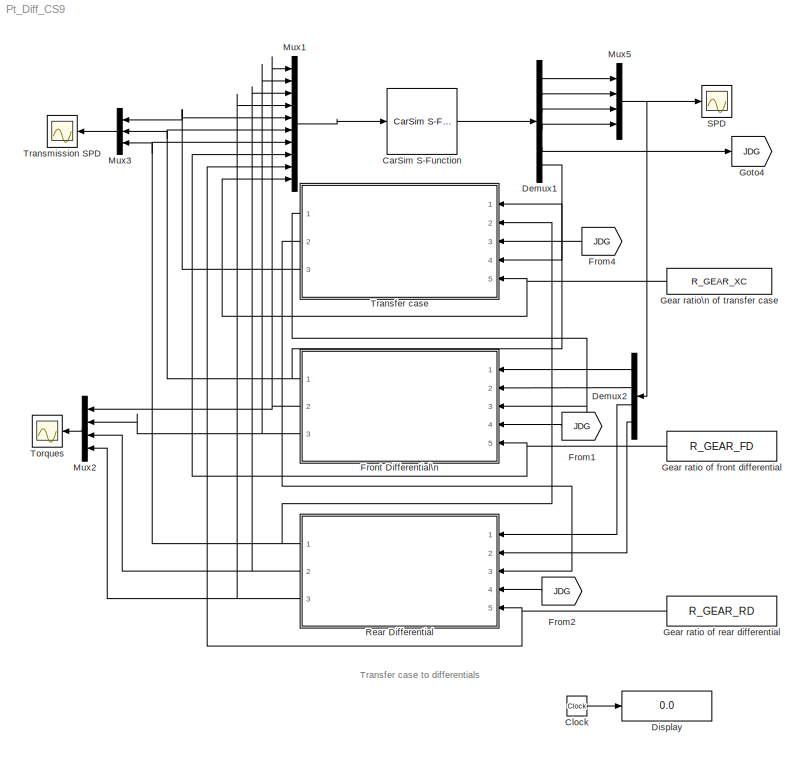
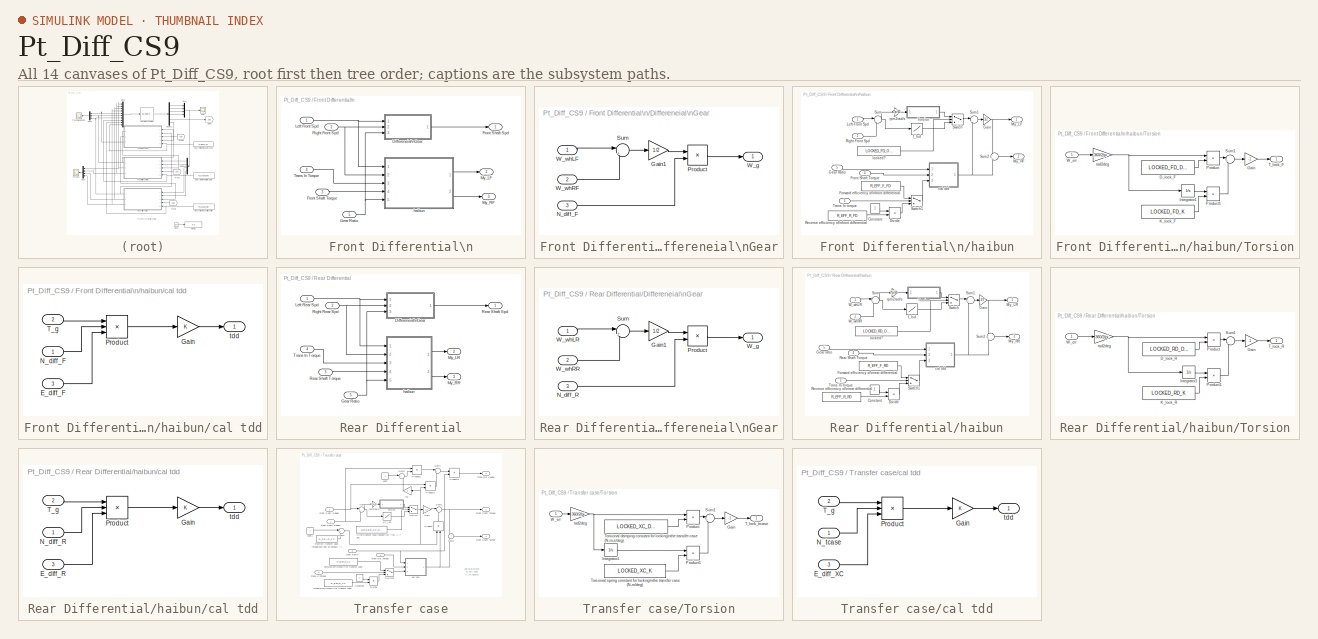
[diagram: thumbnail index - all 14 canvases of the model, root first then tree order]
MODEL Pt_Diff_CS9
KIND model
CONFIG PreLoadFcn = cd Extensions/Simulink/pt_diff	\nRun_ft4wd_eclass	\nlsd_parameta_eclass	\ncd ../../..
BLOCK [Reference] CarSim S-Function  REF=Solver_SF/CarSim S-Function
  Ports = [1, 1]
  Priority = 1
  SID = 1
  SIMFILE = simfile.sim
  SourceBlock = Solver_SF/CarSim S-Function
  SourceType = Vehicle math model library
BLOCK [Clock] Clock
  Decimation = 10
  SID = 2
BLOCK [Demux] Demux1
  Outputs = 6
  Ports = [1, 6]
  SID = 3
BLOCK [Demux] Demux2
  Ports = [1, 4]
  SID = 4
BLOCK [Display] Display
  Decimation = 1
  Lockdown = off
  Ports = [1]
  SID = 5
BLOCK [From] From1
  CloseFcn = tagdialog Close
  GotoTag = JDG
  SID = 6
BLOCK [From] From2
  CloseFcn = tagdialog Close
  GotoTag = JDG
  SID = 7
BLOCK [From] From4
  CloseFcn = tagdialog Close
  GotoTag = JDG
  SID = 8
BLOCK [SubSystem] Front Differential\n
  FunctionWithSeparateData = off
  MaskHideContents = off
  MinAlgLoopOccurrences = off
  Opaque = off
  Ports = [5, 3]
  PropExecContextOutsideSubsystem = off
  RTWSystemCode = Auto
  RequestExecContextInheritance = off
  SID = 9
BLOCK [SubSystem] Front Differential\n/Differeneial\nGear
  FunctionWithSeparateData = off
  MaskHideContents = off
  MinAlgLoopOccurrences = off
  Opaque = off
  Ports = [3, 1]
  PropExecContextOutsideSubsystem = off
  RTWSystemCode = Auto
  RequestExecContextInheritance = off
  SID = 15
BLOCK [Gain] Front Differential\n/Differeneial\nGear/Gain1
  Gain = 1/2
  SID = 19
BLOCK [Inport] Front Differential\n/Differeneial\nGear/N_diff_F
  IconDisplay = Port number
  Port = 3
  SID = 18
BLOCK [Product] Front Differential\n/Differeneial\nGear/Product
  Ports = [2, 1]
  RndMeth = Floor
  SID = 20
BLOCK [Sum] Front Differential\n/Differeneial\nGear/Sum
  IconShape = round
  Inputs = |++
  Ports = [2, 1]
  SID = 21
BLOCK [Outport] Front Differential\n/Differeneial\nGear/W_g
  IconDisplay = Port number
  SID = 22
BLOCK [Inport] Front Differential\n/Differeneial\nGear/W_whLF
  IconDisplay = Port number
  SID = 16
BLOCK [Inport] Front Differential\n/Differeneial\nGear/W_whRF
  IconDisplay = Port number
  Port = 2
  SID = 17
BLOCK [Outport] Front Differential\n/Front Shaft Spd
  IconDisplay = Port number
  SID = 62
BLOCK [Inport] Front Differential\n/Front Shaft Torque
  IconDisplay = Port number
  Port = 3
  SID = 12
BLOCK [Inport] Front Differential\n/Gear Ratio
  IconDisplay = Port number
  Port = 5
  SID = 14
BLOCK [Inport] Front Differential\n/Left Front Spd
  IconDisplay = Port number
  SID = 10
BLOCK [Outport] Front Differential\n/My_LF
  IconDisplay = Port number
  Port = 2
  SID = 63
BLOCK [Outport] Front Differential\n/My_RF
  IconDisplay = Port number
  Port = 3
  SID = 64
BLOCK [Inport] Front Differential\n/Right Front Spd
  IconDisplay = Port number
  Port = 2
  SID = 11
BLOCK [Inport] Front Differential\n/Trans In Torque
  IconDisplay = Port number
  Port = 4
  SID = 13
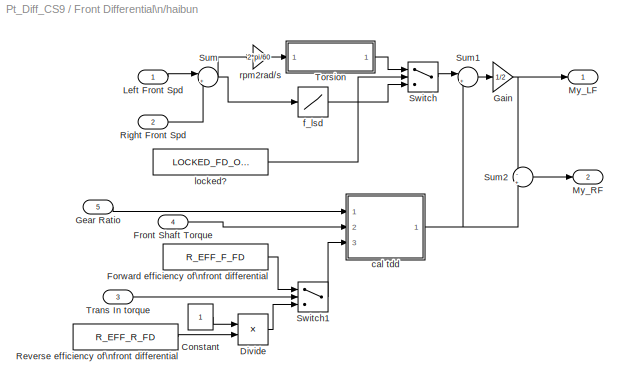
BLOCK [SubSystem] Front Differential\n/haibun
  FunctionWithSeparateData = off
  MaskHideContents = off
  MinAlgLoopOccurrences = off
  Opaque = off
  Ports = [5, 2]
  PropExecContextOutsideSubsystem = off
  RTWSystemCode = Auto
  RequestExecContextInheritance = off
  SID = 23
BLOCK [Constant] Front Differential\n/haibun/Constant
  SID = 29
BLOCK [Product] Front Differential\n/haibun/Divide
  Inputs = */
  Ports = [2, 1]
  RndMeth = Floor
  SID = 30
  SaturateOnIntegerOverflow = off
BLOCK [Constant] Front Differential\n/haibun/Forward efficiency of\nfront differential
  SID = 31
  Value = R_EFF_F_FD
BLOCK [Inport] Front Differential\n/haibun/Front Shaft Torque
  IconDisplay = Port number
  Port = 4
  SID = 27
BLOCK [Gain] Front Differential\n/haibun/Gain
  Gain = 1/2
  SID = 32
BLOCK [Inport] Front Differential\n/haibun/Gear Ratio
  IconDisplay = Port number
  Port = 5
  SID = 28
BLOCK [Inport] Front Differential\n/haibun/Left Front Spd
  IconDisplay = Port number
  SID = 24
BLOCK [Outport] Front Differential\n/haibun/My_LF
  IconDisplay = Port number
  SID = 60
BLOCK [Outport] Front Differential\n/haibun/My_RF
  IconDisplay = Port number
  Port = 2
  SID = 61
BLOCK [Constant] Front Differential\n/haibun/Reverse efficiency of\nfront differential
  SID = 33
  Value = R_EFF_R_FD
BLOCK [Inport] Front Differential\n/haibun/Right Front Spd
  IconDisplay = Port number
  Port = 2
  SID = 25
BLOCK [Sum] Front Differential\n/haibun/Sum
  IconShape = round
  Inputs = |+-
  Ports = [2, 1]
  SID = 34
BLOCK [Sum] Front Differential\n/haibun/Sum1
  IconShape = round
  Inputs = |++
  Ports = [2, 1]
  SID = 35
BLOCK [Sum] Front Differential\n/haibun/Sum2
  IconShape = round
  Inputs = -|+
  Ports = [2, 1]
  SID = 36
BLOCK [Switch] Front Differential\n/haibun/Switch
  SID = 37
  Threshold = 0.5
BLOCK [Switch] Front Differential\n/haibun/Switch1
  SID = 38
BLOCK [SubSystem] Front Differential\n/haibun/Torsion
  FunctionWithSeparateData = off
  MaskHideContents = off
  MinAlgLoopOccurrences = off
  Opaque = off
  Ports = [1, 1]
  PropExecContextOutsideSubsystem = off
  RTWSystemCode = Auto
  RequestExecContextInheritance = off
  SID = 39
BLOCK [Constant] Front Differential\n/haibun/Torsion/D_lock_F
  SID = 41
  Value = LOCKED_FD_DAMP
BLOCK [Gain] Front Differential\n/haibun/Torsion/Gain
  Gain = -1
  SID = 42
BLOCK [Integrator] Front Differential\n/haibun/Torsion/Integrator1
  Ports = [1, 1]
  SID = 43
BLOCK [Constant] Front Differential\n/haibun/Torsion/K_lock_F
  SID = 44
  Value = LOCKED_FD_K
BLOCK [Product] Front Differential\n/haibun/Torsion/Product
  Ports = [2, 1]
  RndMeth = Floor
  SID = 45
BLOCK [Product] Front Differential\n/haibun/Torsion/Product1
  Ports = [2, 1]
  RndMeth = Floor
  SID = 46
BLOCK [Sum] Front Differential\n/haibun/Torsion/Sum1
  IconShape = round
  Inputs = |++
  Ports = [2, 1]
  SID = 47
BLOCK [Outport] Front Differential\n/haibun/Torsion/T_lock_F
  IconDisplay = Port number
  SID = 49
BLOCK [Inport] Front Differential\n/haibun/Torsion/W_err
  IconDisplay = Port number
  SID = 40
BLOCK [Gain] Front Differential\n/haibun/Torsion/rad2deg
  Gain = 360/2/pi
  SID = 48
BLOCK [Inport] Front Differential\n/haibun/Trans In torque
  IconDisplay = Port number
  Port = 3
  SID = 26
BLOCK [SubSystem] Front Differential\n/haibun/cal tdd
  FunctionWithSeparateData = off
  MaskHideContents = off
  MinAlgLoopOccurrences = off
  Opaque = off
  Ports = [3, 1]
  PropExecContextOutsideSubsystem = off
  RTWSystemCode = Auto
  RequestExecContextInheritance = off
  SID = 50
BLOCK [Inport] Front Differential\n/haibun/cal tdd/E_diff_F
  IconDisplay = Port number
  Port = 3
  SID = 53
BLOCK [Gain] Front Differential\n/haibun/cal tdd/Gain
  SID = 54
BLOCK [Inport] Front Differential\n/haibun/cal tdd/N_diff_F
  IconDisplay = Port number
  SID = 51
BLOCK [Product] Front Differential\n/haibun/cal tdd/Product
  Inputs = 3
  Ports = [3, 1]
  RndMeth = Floor
  SID = 55
BLOCK [Inport] Front Differential\n/haibun/cal tdd/T_g
  IconDisplay = Port number
  Port = 2
  SID = 52
BLOCK [Outport] Front Differential\n/haibun/cal tdd/tdd
  IconDisplay = Port number
  SID = 56
BLOCK [Lookup] Front Differential\n/haibun/f_lsd
  InputValues = M_DIFF_FD_TABLE(:,1)
  SID = 57
  Table = M_DIFF_FD_TABLE(:,2)
BLOCK [Constant] Front Differential\n/haibun/locked?
  SID = 58
  Value = LOCKED_FD_OPT
BLOCK [Gain] Front Differential\n/haibun/rpm2rad//s
  Gain = 2*pi/60
  SID = 59
BLOCK [Constant] Gear ratio of front differential
  SID = 66
  Value = R_GEAR_FD
BLOCK [Constant] Gear ratio of rear differential
  SID = 67
  Value = R_GEAR_RD
BLOCK [Constant] Gear ratio\n of transfer case
  SID = 65
  Value = R_GEAR_XC
BLOCK [Goto] Goto4
  GotoTag = JDG
  SID = 68
  TagVisibility = local
BLOCK [Mux] Mux1
  DisplayOption = bar
  Inputs = 10
  Ports = [10, 1]
  SID = 70
BLOCK [Mux] Mux2
  DisplayOption = bar
  Ports = [4, 1]
  SID = 71
BLOCK [Mux] Mux3
  DisplayOption = bar
  Inputs = 3
  Ports = [3, 1]
  SID = 72
BLOCK [Mux] Mux5
  DisplayOption = bar
  Ports = [4, 1]
  SID = 73
BLOCK [SubSystem] Rear Differential
  FunctionWithSeparateData = off
  MaskHideContents = off
  MinAlgLoopOccurrences = off
  Opaque = off
  Ports = [5, 3]
  PropExecContextOutsideSubsystem = off
  RTWSystemCode = Auto
  RequestExecContextInheritance = off
  SID = 74
BLOCK [SubSystem] Rear Differential/Differeneial\nGear
  FunctionWithSeparateData = off
  MaskHideContents = off
  MinAlgLoopOccurrences = off
  Opaque = off
  Ports = [3, 1]
  PropExecContextOutsideSubsystem = off
  RTWSystemCode = Auto
  RequestExecContextInheritance = off
  SID = 80
BLOCK [Gain] Rear Differential/Differeneial\nGear/Gain1
  Gain = 1/2
  SID = 84
BLOCK [Inport] Rear Differential/Differeneial\nGear/N_diff_R
  IconDisplay = Port number
  Port = 3
  SID = 83
BLOCK [Product] Rear Differential/Differeneial\nGear/Product
  Ports = [2, 1]
  RndMeth = Floor
  SID = 85
BLOCK [Sum] Rear Differential/Differeneial\nGear/Sum
  IconShape = round
  Inputs = |++
  Ports = [2, 1]
  SID = 86
BLOCK [Outport] Rear Differential/Differeneial\nGear/W_g
  IconDisplay = Port number
  SID = 87
BLOCK [Inport] Rear Differential/Differeneial\nGear/W_whLR
  IconDisplay = Port number
  SID = 81
BLOCK [Inport] Rear Differential/Differeneial\nGear/W_whRR
  IconDisplay = Port number
  Port = 2
  SID = 82
BLOCK [Inport] Rear Differential/Gear Ratio
  IconDisplay = Port number
  Port = 5
  SID = 79
BLOCK [Inport] Rear Differential/Left Rear Spd
  IconDisplay = Port number
  SID = 75
BLOCK [Outport] Rear Differential/My_LR
  IconDisplay = Port number
  Port = 2
  SID = 128
BLOCK [Outport] Rear Differential/My_RR
  IconDisplay = Port number
  Port = 3
  SID = 129
BLOCK [Outport] Rear Differential/Rear Shaft Spd
  IconDisplay = Port number
  SID = 127
BLOCK [Inport] Rear Differential/Rear Shaft Torque
  IconDisplay = Port number
  Port = 3
  SID = 77
BLOCK [Inport] Rear Differential/Right Rear Spd
  IconDisplay = Port number
  Port = 2
  SID = 76
BLOCK [Inport] Rear Differential/Trans In Torque
  IconDisplay = Port number
  Port = 4
  SID = 78
BLOCK [SubSystem] Rear Differential/haibun
  FunctionWithSeparateData = off
  MaskHideContents = off
  MinAlgLoopOccurrences = off
  Opaque = off
  Ports = [5, 2]
  PropExecContextOutsideSubsystem = off
  RTWSystemCode = Auto
  RequestExecContextInheritance = off
  SID = 88
BLOCK [Constant] Rear Differential/haibun/Constant
  SID = 94
BLOCK [Product] Rear Differential/haibun/Divide
  Inputs = */
  Ports = [2, 1]
  RndMeth = Floor
  SID = 95
  SaturateOnIntegerOverflow = off
BLOCK [Constant] Rear Differential/haibun/Forward efficiency of\nrear differential
  SID = 96
  Value = R_EFF_F_RD
BLOCK [Gain] Rear Differential/haibun/Gain
  Gain = 1/2
  SID = 97
BLOCK [Inport] Rear Differential/haibun/Gear ratio
  IconDisplay = Port number
  Port = 5
  SID = 93
BLOCK [Outport] Rear Differential/haibun/My_LR
  IconDisplay = Port number
  SID = 125
BLOCK [Outport] Rear Differential/haibun/My_RR
  IconDisplay = Port number
  Port = 2
  SID = 126
BLOCK [Inport] Rear Differential/haibun/Rear Shaft Torque
  IconDisplay = Port number
  Port = 4
  SID = 92
BLOCK [Constant] Rear Differential/haibun/Reverse efficiency of\nrear differential
  SID = 98
  Value = R_EFF_R_RD
BLOCK [Sum] Rear Differential/haibun/Sum
  IconShape = round
  Inputs = |+-
  Ports = [2, 1]
  SID = 99
BLOCK [Sum] Rear Differential/haibun/Sum1
  IconShape = round
  Inputs = |++
  Ports = [2, 1]
  SID = 100
BLOCK [Sum] Rear Differential/haibun/Sum2
  IconShape = round
  Inputs = -|+
  Ports = [2, 1]
  SID = 101
BLOCK [Switch] Rear Differential/haibun/Switch
  SID = 102
  Threshold = 0.5
BLOCK [Switch] Rear Differential/haibun/Switch1
  SID = 103
BLOCK [SubSystem] Rear Differential/haibun/Torsion
  FunctionWithSeparateData = off
  MaskHideContents = off
  MinAlgLoopOccurrences = off
  Opaque = off
  Ports = [1, 1]
  PropExecContextOutsideSubsystem = off
  RTWSystemCode = Auto
  RequestExecContextInheritance = off
  SID = 104
BLOCK [Constant] Rear Differential/haibun/Torsion/D_lock_R
  SID = 106
  Value = LOCKED_RD_DAMP
BLOCK [Gain] Rear Differential/haibun/Torsion/Gain
  Gain = -1
  SID = 107
BLOCK [Integrator] Rear Differential/haibun/Torsion/Integrator1
  Ports = [1, 1]
  SID = 108
BLOCK [Constant] Rear Differential/haibun/Torsion/K_lock_R
  SID = 109
  Value = LOCKED_RD_K
BLOCK [Product] Rear Differential/haibun/Torsion/Product
  Ports = [2, 1]
  RndMeth = Floor
  SID = 110
BLOCK [Product] Rear Differential/haibun/Torsion/Product1
  Ports = [2, 1]
  RndMeth = Floor
  SID = 111
BLOCK [Sum] Rear Differential/haibun/Torsion/Sum1
  IconShape = round
  Inputs = |++
  Ports = [2, 1]
  SID = 112
BLOCK [Outport] Rear Differential/haibun/Torsion/T_lock_R
  IconDisplay = Port number
  SID = 114
BLOCK [Inport] Rear Differential/haibun/Torsion/W_err
  IconDisplay = Port number
  SID = 105
BLOCK [Gain] Rear Differential/haibun/Torsion/rad2deg
  Gain = 360/2/pi
  SID = 113
BLOCK [Inport] Rear Differential/haibun/Trans In torque
  IconDisplay = Port number
  Port = 3
  SID = 91
BLOCK [Inport] Rear Differential/haibun/W_whLR
  IconDisplay = Port number
  SID = 89
BLOCK [Inport] Rear Differential/haibun/W_whRR
  IconDisplay = Port number
  Port = 2
  SID = 90
BLOCK [SubSystem] Rear Differential/haibun/cal tdd
  FunctionWithSeparateData = off
  MaskHideContents = off
  MinAlgLoopOccurrences = off
  Opaque = off
  Ports = [3, 1]
  PropExecContextOutsideSubsystem = off
  RTWSystemCode = Auto
  RequestExecContextInheritance = off
  SID = 115
BLOCK [Inport] Rear Differential/haibun/cal tdd/E_diff_R
  IconDisplay = Port number
  Port = 3
  SID = 118
BLOCK [Gain] Rear Differential/haibun/cal tdd/Gain
  SID = 119
BLOCK [Inport] Rear Differential/haibun/cal tdd/N_diff_R
  IconDisplay = Port number
  SID = 116
BLOCK [Product] Rear Differential/haibun/cal tdd/Product
  Inputs = 3
  Ports = [3, 1]
  RndMeth = Floor
  SID = 120
BLOCK [Inport] Rear Differential/haibun/cal tdd/T_g
  IconDisplay = Port number
  Port = 2
  SID = 117
BLOCK [Outport] Rear Differential/haibun/cal tdd/tdd
  IconDisplay = Port number
  SID = 121
BLOCK [Lookup] Rear Differential/haibun/f_lsd
  InputValues = M_DIFF_RD_TABLE(:,1)
  SID = 122
  Table = M_DIFF_RD_TABLE(:,2)
BLOCK [Constant] Rear Differential/haibun/locked?
  SID = 123
  Value = LOCKED_RD_OPT
BLOCK [Gain] Rear Differential/haibun/rpm2rad//s
  Gain = 2*pi/60
  SID = 124
BLOCK [Scope] SPD
  DataFormat = StructureWithTime
  Floating = off
  LimitDataPoints = off
  NumInputPorts = 1
  Ports = [1]
  SID = 130
  YMax = 1340.24
  YMin = -68.0473
BLOCK [Scope] Torques
  DataFormat = StructureWithTime
  Floating = off
  LimitDataPoints = off
  NumInputPorts = 1
  Ports = [1]
  SID = 131
  YMax = 1750
  YMin = 0
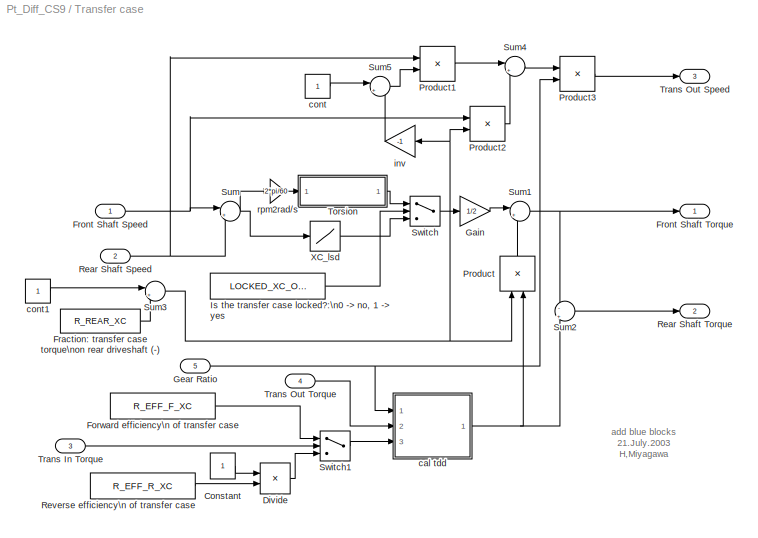
BLOCK [SubSystem] Transfer case
  FunctionWithSeparateData = off
  MaskHideContents = off
  MinAlgLoopOccurrences = off
  Opaque = off
  Ports = [5, 3]
  PropExecContextOutsideSubsystem = off
  RTWSystemCode = Auto
  RequestExecContextInheritance = off
  SID = 132
BLOCK [Constant] Transfer case/Constant
  SID = 138
BLOCK [Product] Transfer case/Divide
  Inputs = */
  Ports = [2, 1]
  RndMeth = Floor
  SID = 139
  SaturateOnIntegerOverflow = off
BLOCK [Constant] Transfer case/Forward efficiency\n of  transfer case
  SID = 140
  Value = R_EFF_F_XC
BLOCK [Constant] Transfer case/Fraction: transfer case torque\non rear driveshaft (-)
  SID = 141
  Value = R_REAR_XC
BLOCK [Inport] Transfer case/Front Shaft Speed
  IconDisplay = Port number
  SID = 133
BLOCK [Outport] Transfer case/Front Shaft Torque
  IconDisplay = Port number
  SID = 180
BLOCK [Gain] Transfer case/Gain
  Gain = 1/2
  SID = 142
BLOCK [Inport] Transfer case/Gear Ratio
  IconDisplay = Port number
  Port = 5
  SID = 137
BLOCK [Constant] Transfer case/Is the transfer case locked?:\n0 -> no, 1 -> yes
  SID = 143
  Value = LOCKED_XC_OPT
BLOCK [Product] Transfer case/Product
  Ports = [2, 1]
  RndMeth = Floor
  SID = 144
BLOCK [Product] Transfer case/Product1
  Ports = [2, 1]
  RndMeth = Floor
  SID = 145
BLOCK [Product] Transfer case/Product2
  Ports = [2, 1]
  RndMeth = Floor
  SID = 146
BLOCK [Product] Transfer case/Product3
  Ports = [2, 1]
  RndMeth = Floor
  SID = 147
BLOCK [Inport] Transfer case/Rear Shaft Speed
  IconDisplay = Port number
  Port = 2
  SID = 134
BLOCK [Outport] Transfer case/Rear Shaft Torque
  IconDisplay = Port number
  Port = 2
  SID = 181
BLOCK [Constant] Transfer case/Reverse efficiency\n of transfer case
  SID = 148
  Value = R_EFF_R_XC
BLOCK [Sum] Transfer case/Sum
  IconShape = round
  Inputs = |+-
  Ports = [2, 1]
  SID = 149
BLOCK [Sum] Transfer case/Sum1
  IconShape = round
  Inputs = |++
  Ports = [2, 1]
  SID = 150
BLOCK [Sum] Transfer case/Sum2
  IconShape = round
  Inputs = -|+
  Ports = [2, 1]
  SID = 151
BLOCK [Sum] Transfer case/Sum3
  IconShape = round
  Inputs = |+-
  Ports = [2, 1]
  SID = 152
BLOCK [Sum] Transfer case/Sum4
  IconShape = round
  Inputs = |++
  Ports = [2, 1]
  SID = 153
BLOCK [Sum] Transfer case/Sum5
  IconShape = round
  Inputs = |++
  Ports = [2, 1]
  SID = 154
BLOCK [Switch] Transfer case/Switch
  SID = 155
  Threshold = 0.5
BLOCK [Switch] Transfer case/Switch1
  SID = 156
BLOCK [SubSystem] Transfer case/Torsion
  FunctionWithSeparateData = off
  MaskHideContents = off
  MinAlgLoopOccurrences = off
  Opaque = off
  Ports = [1, 1]
  PropExecContextOutsideSubsystem = off
  RTWSystemCode = Auto
  RequestExecContextInheritance = off
  SID = 157
BLOCK [Gain] Transfer case/Torsion/Gain
  Gain = -1
  SID = 159
BLOCK [Integrator] Transfer case/Torsion/Integrator1
  Ports = [1, 1]
  SID = 160
BLOCK [Product] Transfer case/Torsion/Product
  Ports = [2, 1]
  RndMeth = Floor
  SID = 161
BLOCK [Product] Transfer case/Torsion/Product1
  Ports = [2, 1]
  RndMeth = Floor
  SID = 162
BLOCK [Sum] Transfer case/Torsion/Sum1
  IconShape = round
  Inputs = |++
  Ports = [2, 1]
  SID = 163
BLOCK [Outport] Transfer case/Torsion/T_lock_trcase
  IconDisplay = Port number
  SID = 167
BLOCK [Constant] Transfer case/Torsion/Torsional damping constant for locking\nthe transfer case (N-m-s//deg)
  SID = 164
  Value = LOCKED_XC_DAMP
BLOCK [Constant] Transfer case/Torsion/Torsional spring constant for locking\nthe transfer case (N-m//deg)
  SID = 165
  Value = LOCKED_XC_K
BLOCK [Inport] Transfer case/Torsion/W_err
  IconDisplay = Port number
  SID = 158
BLOCK [Gain] Transfer case/Torsion/rad2deg
  Gain = 360/2/pi
  SID = 166
BLOCK [Inport] Transfer case/Trans In Torque
  IconDisplay = Port number
  Port = 3
  SID = 135
BLOCK [Outport] Transfer case/Trans Out Speed
  IconDisplay = Port number
  Port = 3
  SID = 182
BLOCK [Inport] Transfer case/Trans Out Torque
  IconDisplay = Port number
  Port = 4
  SID = 136
BLOCK [Lookup] Transfer case/XC_lsd
  InputValues = M_DIFF_XC_TABLE(:,1)
  SID = 168
  Table = M_DIFF_XC_TABLE(:,2)
BLOCK [SubSystem] Transfer case/cal tdd
  FunctionWithSeparateData = off
  MaskHideContents = off
  MinAlgLoopOccurrences = off
  Opaque = off
  Ports = [3, 1]
  PropExecContextOutsideSubsystem = off
  RTWSystemCode = Auto
  RequestExecContextInheritance = off
  SID = 169
BLOCK [Inport] Transfer case/cal tdd/E_diff_XC
  IconDisplay = Port number
  Port = 3
  SID = 172
BLOCK [Gain] Transfer case/cal tdd/Gain
  SID = 173
BLOCK [Inport] Transfer case/cal tdd/N_tcase
  IconDisplay = Port number
  SID = 170
BLOCK [Product] Transfer case/cal tdd/Product
  Inputs = 3
  Ports = [3, 1]
  RndMeth = Floor
  SID = 174
BLOCK [Inport] Transfer case/cal tdd/T_g
  IconDisplay = Port number
  Port = 2
  SID = 171
BLOCK [Outport] Transfer case/cal tdd/tdd
  IconDisplay = Port number
  SID = 175
BLOCK [Constant] Transfer case/cont
  SID = 176
BLOCK [Constant] Transfer case/cont1
  SID = 177
BLOCK [Gain] Transfer case/inv
  Gain = -1
  SID = 178
BLOCK [Gain] Transfer case/rpm2rad//s
  Gain = 2*pi/60
  SID = 179
BLOCK [Scope] Transmission SPD
  DataFormat = StructureWithTime
  Floating = off
  LimitDataPoints = off
  NumInputPorts = 1
  Ports = [1]
  SID = 183
  SaveName = ScopeData1
  YMax = 3683.73
  YMin = -111.446
ANNOTATION (root): Transfer case to differentials
ANNOTATION Transfer case: add blue blocks\n21.July.2003\nH,Miyagawa
LINE CarSim S-Function:1 -> Demux1:1
LINE Clock:1 -> Display:1
LINE Demux1:1 -> Mux5:1
LINE Demux1:2 -> Mux5:2
LINE Demux1:3 -> Mux5:3
LINE Demux1:4 -> Mux5:4
LINE Demux1:5 -> Goto4:1
LINE Demux1:6 -> Transfer case:4
LINE Demux2:1 -> Front Differential\n:1
LINE Demux2:2 -> Front Differential\n:2
LINE Demux2:3 -> Rear Differential:1
LINE Demux2:4 -> Rear Differential:2
LINE From1:1 -> Front Differential\n:4
LINE From2:1 -> Rear Differential:4
LINE From4:1 -> Transfer case:3
LINE Front Differential\n/Differeneial\nGear/Gain1:1 -> Front Differential\n/Differeneial\nGear/Product:1
LINE Front Differential\n/Differeneial\nGear/N_diff_F:1 -> Front Differential\n/Differeneial\nGear/Product:2
LINE Front Differential\n/Differeneial\nGear/Product:1 -> Front Differential\n/Differeneial\nGear/W_g:1
LINE Front Differential\n/Differeneial\nGear/Sum:1 -> Front Differential\n/Differeneial\nGear/Gain1:1
LINE Front Differential\n/Differeneial\nGear/W_whLF:1 -> Front Differential\n/Differeneial\nGear/Sum:1
LINE Front Differential\n/Differeneial\nGear/W_whRF:1 -> Front Differential\n/Differeneial\nGear/Sum:2
LINE Front Differential\n/Differeneial\nGear:1 -> Front Differential\n/Front Shaft Spd:1
LINE Front Differential\n/Front Shaft Torque:1 -> Front Differential\n/haibun:4
NET Front Differential\n/Gear Ratio:1 -> Front Differential\n/Differeneial\nGear:3, Front Differential\n/haibun:5
NET Front Differential\n/Left Front Spd:1 -> Front Differential\n/Differeneial\nGear:1, Front Differential\n/haibun:1
NET Front Differential\n/Right Front Spd:1 -> Front Differential\n/Differeneial\nGear:2, Front Differential\n/haibun:2
LINE Front Differential\n/Trans In Torque:1 -> Front Differential\n/haibun:3
LINE Front Differential\n/haibun/Constant:1 -> Front Differential\n/haibun/Divide:1
LINE Front Differential\n/haibun/Divide:1 -> Front Differential\n/haibun/Switch1:3
LINE Front Differential\n/haibun/Forward efficiency of\nfront differential:1 -> Front Differential\n/haibun/Switch1:1
LINE Front Differential\n/haibun/Front Shaft Torque:1 -> Front Differential\n/haibun/cal tdd:2
NET Front Differential\n/haibun/Gain:1 -> Front Differential\n/haibun/My_LF:1, Front Differential\n/haibun/Sum2:1
LINE Front Differential\n/haibun/Gear Ratio:1 -> Front Differential\n/haibun/cal tdd:1
LINE Front Differential\n/haibun/Left Front Spd:1 -> Front Differential\n/haibun/Sum:1
LINE Front Differential\n/haibun/Reverse efficiency of\nfront differential:1 -> Front Differential\n/haibun/Divide:2
LINE Front Differential\n/haibun/Right Front Spd:1 -> Front Differential\n/haibun/Sum:2
LINE Front Differential\n/haibun/Sum1:1 -> Front Differential\n/haibun/Gain:1
LINE Front Differential\n/haibun/Sum2:1 -> Front Differential\n/haibun/My_RF:1
NET Front Differential\n/haibun/Sum:1 -> Front Differential\n/haibun/f_lsd:1, Front Differential\n/haibun/rpm2rad//s:1
LINE Front Differential\n/haibun/Switch1:1 -> Front Differential\n/haibun/cal tdd:3
LINE Front Differential\n/haibun/Switch:1 -> Front Differential\n/haibun/Sum1:1
LINE Front Differential\n/haibun/Torsion/D_lock_F:1 -> Front Differential\n/haibun/Torsion/Product:2
LINE Front Differential\n/haibun/Torsion/Gain:1 -> Front Differential\n/haibun/Torsion/T_lock_F:1
LINE Front Differential\n/haibun/Torsion/Integrator1:1 -> Front Differential\n/haibun/Torsion/Product1:1
LINE Front Differential\n/haibun/Torsion/K_lock_F:1 -> Front Differential\n/haibun/Torsion/Product1:2
LINE Front Differential\n/haibun/Torsion/Product1:1 -> Front Differential\n/haibun/Torsion/Sum1:2
LINE Front Differential\n/haibun/Torsion/Product:1 -> Front Differential\n/haibun/Torsion/Sum1:1
LINE Front Differential\n/haibun/Torsion/Sum1:1 -> Front Differential\n/haibun/Torsion/Gain:1
LINE Front Differential\n/haibun/Torsion/W_err:1 -> Front Differential\n/haibun/Torsion/rad2deg:1
NET Front Differential\n/haibun/Torsion/rad2deg:1 -> Front Differential\n/haibun/Torsion/Integrator1:1, Front Differential\n/haibun/Torsion/Product:1
LINE Front Differential\n/haibun/Torsion:1 -> Front Differential\n/haibun/Switch:1
LINE Front Differential\n/haibun/Trans In torque:1 -> Front Differential\n/haibun/Switch1:2
LINE Front Differential\n/haibun/cal tdd/E_diff_F:1 -> Front Differential\n/haibun/cal tdd/Product:3
LINE Front Differential\n/haibun/cal tdd/Gain:1 -> Front Differential\n/haibun/cal tdd/tdd:1
LINE Front Differential\n/haibun/cal tdd/N_diff_F:1 -> Front Differential\n/haibun/cal tdd/Product:2
LINE Front Differential\n/haibun/cal tdd/Product:1 -> Front Differential\n/haibun/cal tdd/Gain:1
LINE Front Differential\n/haibun/cal tdd/T_g:1 -> Front Differential\n/haibun/cal tdd/Product:1
NET Front Differential\n/haibun/cal tdd:1 -> Front Differential\n/haibun/Sum1:2, Front Differential\n/haibun/Sum2:2
LINE Front Differential\n/haibun/f_lsd:1 -> Front Differential\n/haibun/Switch:3
LINE Front Differential\n/haibun/locked?:1 -> Front Differential\n/haibun/Switch:2
LINE Front Differential\n/haibun/rpm2rad//s:1 -> Front Differential\n/haibun/Torsion:1
LINE Front Differential\n/haibun:1 -> Front Differential\n/My_LF:1
LINE Front Differential\n/haibun:2 -> Front Differential\n/My_RF:1
NET Front Differential\n:1 -> Mux1:6, Mux3:2, Transfer case:1
NET Front Differential\n:2 -> Mux1:1, Mux2:1
NET Front Differential\n:3 -> Mux1:2, Mux2:2
NET Gear ratio of front differential:1 -> Front Differential\n:5, Mux1:8
NET Gear ratio of rear differential:1 -> Mux1:9, Rear Differential:5
NET Gear ratio\n of transfer case:1 -> Mux1:10, Transfer case:5
LINE Mux1:1 -> CarSim S-Function:1
LINE Mux2:1 -> Torques:1
LINE Mux3:1 -> Transmission SPD:1
NET Mux5:1 -> Demux2:1, SPD:1
LINE Rear Differential/Differeneial\nGear/Gain1:1 -> Rear Differential/Differeneial\nGear/Product:1
LINE Rear Differential/Differeneial\nGear/N_diff_R:1 -> Rear Differential/Differeneial\nGear/Product:2
LINE Rear Differential/Differeneial\nGear/Product:1 -> Rear Differential/Differeneial\nGear/W_g:1
LINE Rear Differential/Differeneial\nGear/Sum:1 -> Rear Differential/Differeneial\nGear/Gain1:1
LINE Rear Differential/Differeneial\nGear/W_whLR:1 -> Rear Differential/Differeneial\nGear/Sum:1
LINE Rear Differential/Differeneial\nGear/W_whRR:1 -> Rear Differential/Differeneial\nGear/Sum:2
LINE Rear Differential/Differeneial\nGear:1 -> Rear Differential/Rear Shaft Spd:1
NET Rear Differential/Gear Ratio:1 -> Rear Differential/Differeneial\nGear:3, Rear Differential/haibun:5
NET Rear Differential/Left Rear Spd:1 -> Rear Differential/Differeneial\nGear:1, Rear Differential/haibun:1
LINE Rear Differential/Rear Shaft Torque:1 -> Rear Differential/haibun:4
NET Rear Differential/Right Rear Spd:1 -> Rear Differential/Differeneial\nGear:2, Rear Differential/haibun:2
LINE Rear Differential/Trans In Torque:1 -> Rear Differential/haibun:3
LINE Rear Differential/haibun/Constant:1 -> Rear Differential/haibun/Divide:1
LINE Rear Differential/haibun/Divide:1 -> Rear Differential/haibun/Switch1:3
LINE Rear Differential/haibun/Forward efficiency of\nrear differential:1 -> Rear Differential/haibun/Switch1:1
NET Rear Differential/haibun/Gain:1 -> Rear Differential/haibun/My_LR:1, Rear Differential/haibun/Sum2:1
LINE Rear Differential/haibun/Gear ratio:1 -> Rear Differential/haibun/cal tdd:1
LINE Rear Differential/haibun/Rear Shaft Torque:1 -> Rear Differential/haibun/cal tdd:2
LINE Rear Differential/haibun/Reverse efficiency of\nrear differential:1 -> Rear Differential/haibun/Divide:2
LINE Rear Differential/haibun/Sum1:1 -> Rear Differential/haibun/Gain:1
LINE Rear Differential/haibun/Sum2:1 -> Rear Differential/haibun/My_RR:1
NET Rear Differential/haibun/Sum:1 -> Rear Differential/haibun/f_lsd:1, Rear Differential/haibun/rpm2rad//s:1
LINE Rear Differential/haibun/Switch1:1 -> Rear Differential/haibun/cal tdd:3
LINE Rear Differential/haibun/Switch:1 -> Rear Differential/haibun/Sum1:1
LINE Rear Differential/haibun/Torsion/D_lock_R:1 -> Rear Differential/haibun/Torsion/Product:2
LINE Rear Differential/haibun/Torsion/Gain:1 -> Rear Differential/haibun/Torsion/T_lock_R:1
LINE Rear Differential/haibun/Torsion/Integrator1:1 -> Rear Differential/haibun/Torsion/Product1:1
LINE Rear Differential/haibun/Torsion/K_lock_R:1 -> Rear Differential/haibun/Torsion/Product1:2
LINE Rear Differential/haibun/Torsion/Product1:1 -> Rear Differential/haibun/Torsion/Sum1:2
LINE Rear Differential/haibun/Torsion/Product:1 -> Rear Differential/haibun/Torsion/Sum1:1
LINE Rear Differential/haibun/Torsion/Sum1:1 -> Rear Differential/haibun/Torsion/Gain:1
LINE Rear Differential/haibun/Torsion/W_err:1 -> Rear Differential/haibun/Torsion/rad2deg:1
NET Rear Differential/haibun/Torsion/rad2deg:1 -> Rear Differential/haibun/Torsion/Integrator1:1, Rear Differential/haibun/Torsion/Product:1
LINE Rear Differential/haibun/Torsion:1 -> Rear Differential/haibun/Switch:1
LINE Rear Differential/haibun/Trans In torque:1 -> Rear Differential/haibun/Switch1:2
LINE Rear Differential/haibun/W_whLR:1 -> Rear Differential/haibun/Sum:1
LINE Rear Differential/haibun/W_whRR:1 -> Rear Differential/haibun/Sum:2
LINE Rear Differential/haibun/cal tdd/E_diff_R:1 -> Rear Differential/haibun/cal tdd/Product:3
LINE Rear Differential/haibun/cal tdd/Gain:1 -> Rear Differential/haibun/cal tdd/tdd:1
LINE Rear Differential/haibun/cal tdd/N_diff_R:1 -> Rear Differential/haibun/cal tdd/Product:2
LINE Rear Differential/haibun/cal tdd/Product:1 -> Rear Differential/haibun/cal tdd/Gain:1
LINE Rear Differential/haibun/cal tdd/T_g:1 -> Rear Differential/haibun/cal tdd/Product:1
NET Rear Differential/haibun/cal tdd:1 -> Rear Differential/haibun/Sum1:2, Rear Differential/haibun/Sum2:2
LINE Rear Differential/haibun/f_lsd:1 -> Rear Differential/haibun/Switch:3
LINE Rear Differential/haibun/locked?:1 -> Rear Differential/haibun/Switch:2
LINE Rear Differential/haibun/rpm2rad//s:1 -> Rear Differential/haibun/Torsion:1
LINE Rear Differential/haibun:1 -> Rear Differential/My_LR:1
LINE Rear Differential/haibun:2 -> Rear Differential/My_RR:1
NET Rear Differential:1 -> Mux1:7, Mux3:3, Transfer case:2
NET Rear Differential:2 -> Mux1:3, Mux2:3
NET Rear Differential:3 -> Mux1:4, Mux2:4
LINE Transfer case/Constant:1 -> Transfer case/Divide:1
LINE Transfer case/Divide:1 -> Transfer case/Switch1:3
LINE Transfer case/Forward efficiency\n of  transfer case:1 -> Transfer case/Switch1:1
LINE Transfer case/Fraction: transfer case torque\non rear driveshaft (-):1 -> Transfer case/Sum3:2
NET Transfer case/Front Shaft Speed:1 -> Transfer case/Product2:1, Transfer case/Sum:1
LINE Transfer case/Gain:1 -> Transfer case/Sum1:1
NET Transfer case/Gear Ratio:1 -> Transfer case/Product3:2, Transfer case/cal tdd:1
LINE Transfer case/Is the transfer case locked?:\n0 -> no, 1 -> yes:1 -> Transfer case/Switch:2
LINE Transfer case/Product1:1 -> Transfer case/Sum4:1
LINE Transfer case/Product2:1 -> Transfer case/Sum4:2
LINE Transfer case/Product3:1 -> Transfer case/Trans Out Speed:1
LINE Transfer case/Product:1 -> Transfer case/Sum1:2
NET Transfer case/Rear Shaft Speed:1 -> Transfer case/Product1:1, Transfer case/Sum:2
LINE Transfer case/Reverse efficiency\n of transfer case:1 -> Transfer case/Divide:2
NET Transfer case/Sum1:1 -> Transfer case/Front Shaft Torque:1, Transfer case/Sum2:1
LINE Transfer case/Sum2:1 -> Transfer case/Rear Shaft Torque:1
NET Transfer case/Sum3:1 -> Transfer case/Product2:2, Transfer case/Product:1, Transfer case/inv:1
LINE Transfer case/Sum4:1 -> Transfer case/Product3:1
LINE Transfer case/Sum5:1 -> Transfer case/Product1:2
NET Transfer case/Sum:1 -> Transfer case/XC_lsd:1, Transfer case/rpm2rad//s:1
LINE Transfer case/Switch1:1 -> Transfer case/cal tdd:3
LINE Transfer case/Switch:1 -> Transfer case/Gain:1
LINE Transfer case/Torsion/Gain:1 -> Transfer case/Torsion/T_lock_trcase:1
LINE Transfer case/Torsion/Integrator1:1 -> Transfer case/Torsion/Product1:1
LINE Transfer case/Torsion/Product1:1 -> Transfer case/Torsion/Sum1:2
LINE Transfer case/Torsion/Product:1 -> Transfer case/Torsion/Sum1:1
LINE Transfer case/Torsion/Sum1:1 -> Transfer case/Torsion/Gain:1
LINE Transfer case/Torsion/Torsional damping constant for locking\nthe transfer case (N-m-s//deg):1 -> Transfer case/Torsion/Product:2
LINE Transfer case/Torsion/Torsional spring constant for locking\nthe transfer case (N-m//deg):1 -> Transfer case/Torsion/Product1:2
LINE Transfer case/Torsion/W_err:1 -> Transfer case/Torsion/rad2deg:1
NET Transfer case/Torsion/rad2deg:1 -> Transfer case/Torsion/Integrator1:1, Transfer case/Torsion/Product:1
LINE Transfer case/Torsion:1 -> Transfer case/Switch:1
LINE Transfer case/Trans In Torque:1 -> Transfer case/Switch1:2
LINE Transfer case/Trans Out Torque:1 -> Transfer case/cal tdd:2
LINE Transfer case/XC_lsd:1 -> Transfer case/Switch:3
LINE Transfer case/cal tdd/E_diff_XC:1 -> Transfer case/cal tdd/Product:3
LINE Transfer case/cal tdd/Gain:1 -> Transfer case/cal tdd/tdd:1
LINE Transfer case/cal tdd/N_tcase:1 -> Transfer case/cal tdd/Product:2
LINE Transfer case/cal tdd/Product:1 -> Transfer case/cal tdd/Gain:1
LINE Transfer case/cal tdd/T_g:1 -> Transfer case/cal tdd/Product:1
NET Transfer case/cal tdd:1 -> Transfer case/Product:2, Transfer case/Sum2:2
LINE Transfer case/cont1:1 -> Transfer case/Sum3:1
LINE Transfer case/cont:1 -> Transfer case/Sum5:1
LINE Transfer case/inv:1 -> Transfer case/Sum5:2
LINE Transfer case/rpm2rad//s:1 -> Transfer case/Torsion:1
LINE Transfer case:1 -> Front Differential\n:3
LINE Transfer case:2 -> Rear Differential:3
NET Transfer case:3 -> Mux1:5, Mux3:1
note: NET lines group one-source signal fan-out (src -> all destinations, sorted); 1:1 wires keep LINE
